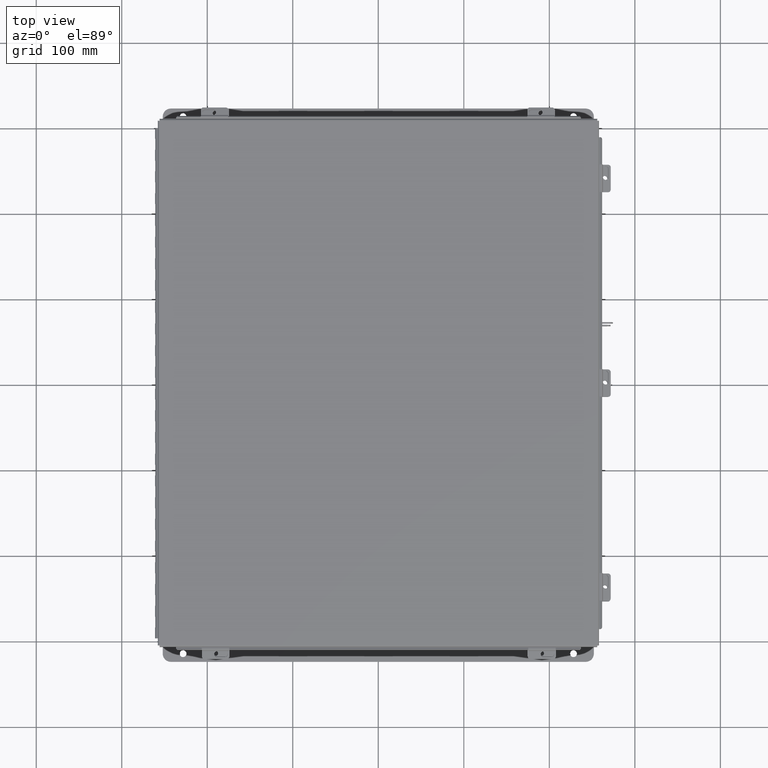
[diagram: clean part render]
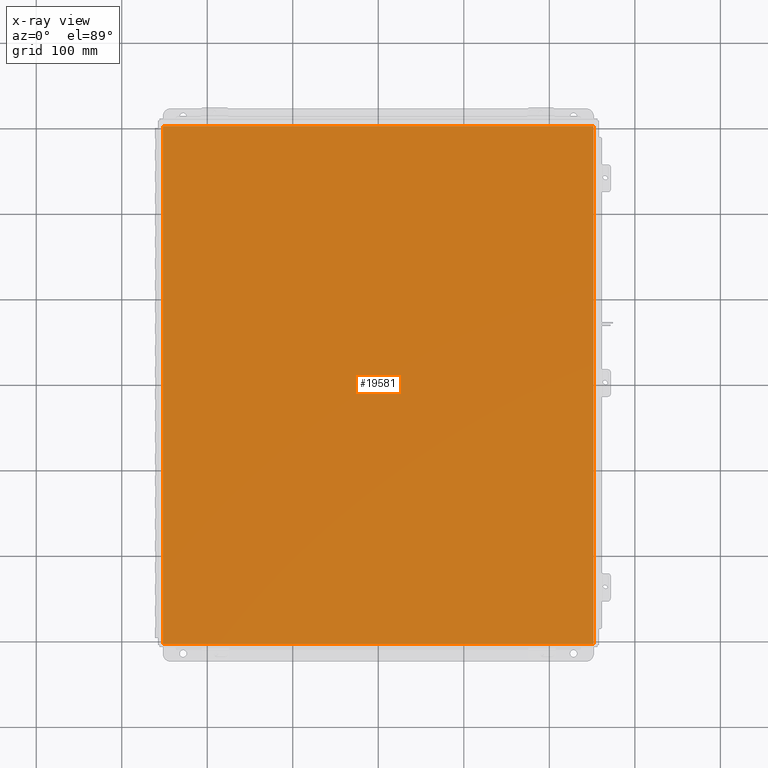
[diagram: x-ray — body ghosted, one internal face saturated and labeled with its STEP entity id]
A machine part, top view, then the same camera in x-ray: the body is ghosted and one INTERNAL B-rep face — a face not visible from any outside direction — is saturated and labeled: STEP entity #19581.
In plain terms, the highlighted planar face has unit normal (0, 0, -1).
Its self-contained STEP definition (entity closure, byte-faithful):
#80 = FACE_OUTER_BOUND ( 'NONE', #17732, .T. ) ;
#184 = DIRECTION ( 'NONE',  ( 1.000000000000000000, 0.0000000000000000000, 0.0000000000000000000 ) ) ;
#2328 = CARTESIAN_POINT ( 'NONE',  ( 9.912300000000000100, 11.92529999999999600, 4.268512490100411300E-017 ) ) ;
#2824 = ORIENTED_EDGE ( 'NONE', *, *, #11162, .F. ) ;
#2843 = CARTESIAN_POINT ( 'NONE',  ( -9.912300000000000100, -11.92530000000000000, 4.268512490100411300E-017 ) ) ;
#3522 = DIRECTION ( 'NONE',  ( -0.0000000000000000000, 1.000000000000000000, -0.0000000000000000000 ) ) ;
#3952 = CARTESIAN_POINT ( 'NONE',  ( -10.00000000000000000, -11.92530000000000000, 0.0000000000000000000 ) ) ;
#4095 = DIRECTION ( 'NONE',  ( -1.000000000000000000, 0.0000000000000000000, -0.0000000000000000000 ) ) ;
#4658 = CARTESIAN_POINT ( 'NONE',  ( 0.0000000000000000000, 0.0000000000000000000, 0.0000000000000000000 ) ) ;
#4935 = LINE ( 'NONE', #2328, #9630 ) ;
#5776 = VECTOR ( 'NONE', #3522, 39.37007874015748100 ) ;
#6457 = PLANE ( 'NONE',  #16573 ) ;
#6687 = ORIENTED_EDGE ( 'NONE', *, *, #11042, .F. ) ;
#7539 = CARTESIAN_POINT ( 'NONE',  ( -10.00000000000000000, 11.92529999999999600, 0.0000000000000000000 ) ) ;
#7944 = DIRECTION ( 'NONE',  ( -1.000000000000000000, -0.0000000000000000000, -0.0000000000000000000 ) ) ;
#8514 = ORIENTED_EDGE ( 'NONE', *, *, #11488, .T. ) ;
#8762 = CARTESIAN_POINT ( 'NONE',  ( 9.912300000000000100, 11.92529999999999300, 4.268512490100411300E-017 ) ) ;
#9408 = CARTESIAN_POINT ( 'NONE',  ( 9.912300000000000100, -11.92530000000000000, 4.268512490100411300E-017 ) ) ;
#9630 = VECTOR ( 'NONE', #14012, 39.37007874015748100 ) ;
#9660 = LINE ( 'NONE', #2843, #5776 ) ;
#10420 = VECTOR ( 'NONE', #184, 39.37007874015748100 ) ;
#10572 = VERTEX_POINT ( 'NONE', #23689 ) ;
#10977 = EDGE_CURVE ( 'NONE', #14348, #10572, #15458, .T. ) ;
#11042 = EDGE_CURVE ( 'NONE', #17497, #10572, #9660, .T. ) ;
#11162 = EDGE_CURVE ( 'NONE', #14348, #24452, #4935, .T. ) ;
#11488 = EDGE_CURVE ( 'NONE', #17497, #24452, #18774, .T. ) ;
#12084 = ORIENTED_EDGE ( 'NONE', *, *, #10977, .T. ) ;
#13988 = DIRECTION ( 'NONE',  ( 0.0000000000000000000, 0.0000000000000000000, -1.000000000000000000 ) ) ;
#14012 = DIRECTION ( 'NONE',  ( -0.0000000000000000000, -1.000000000000000000, -0.0000000000000000000 ) ) ;
#14348 = VERTEX_POINT ( 'NONE', #8762 ) ;
#15458 = LINE ( 'NONE', #7539, #23479 ) ;
#16573 = AXIS2_PLACEMENT_3D ( 'NONE', #4658, #13988, #4095 ) ;
#17497 = VERTEX_POINT ( 'NONE', #21535 ) ;
#17732 = EDGE_LOOP ( 'NONE', ( #2824, #12084, #6687, #8514 ) ) ;
#18774 = LINE ( 'NONE', #3952, #10420 ) ;
#19581 = ADVANCED_FACE ( 'NONE', ( #80 ), #6457, .F. ) ;
#21535 = CARTESIAN_POINT ( 'NONE',  ( -9.912300000000000100, -11.92529999999999600, 4.268512490100411300E-017 ) ) ;
#23479 = VECTOR ( 'NONE', #7944, 39.37007874015748100 ) ;
#23689 = CARTESIAN_POINT ( 'NONE',  ( -9.912300000000000100, 11.92529999999999600, 4.268512490100411300E-017 ) ) ;
#24452 = VERTEX_POINT ( 'NONE', #9408 ) ;